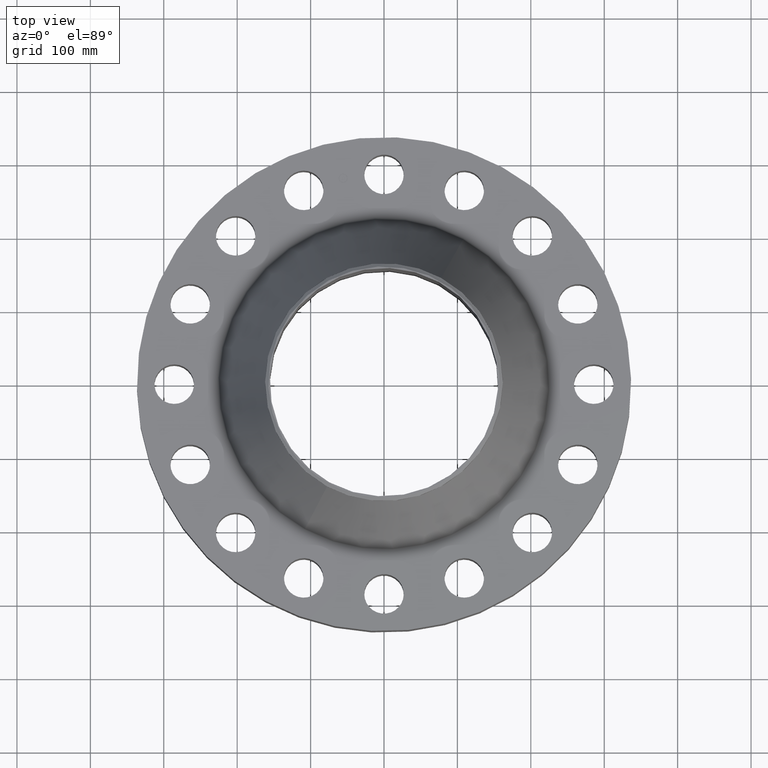
[diagram: clean part render]
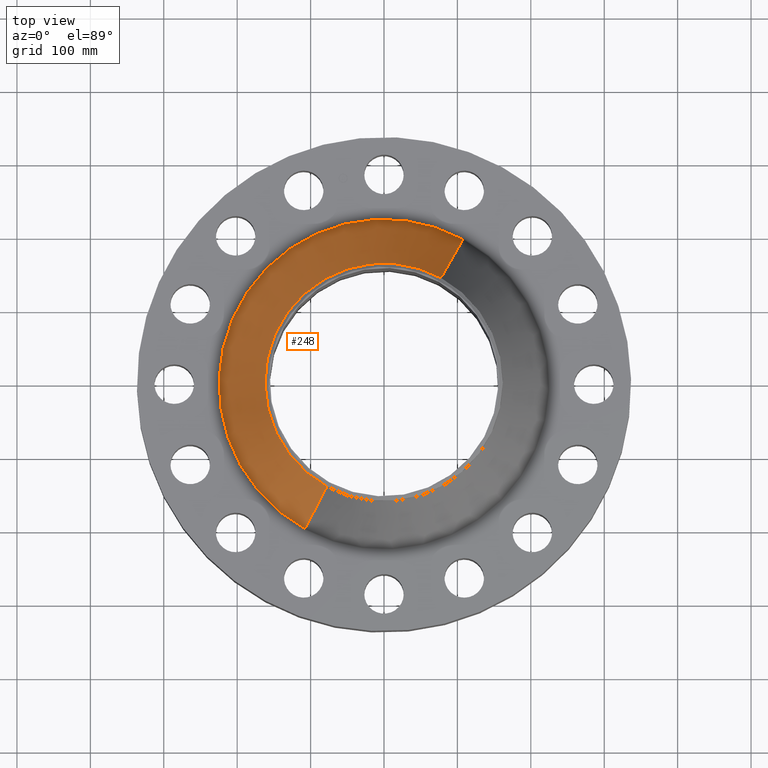
[diagram: same view with one face highlighted and labeled with its STEP entity id]
A machine part, top view. The second image highlights one B-rep face of the part: STEP entity #248.
In plain terms, the highlighted conical surface has half-angle 23.061 deg.
Its self-contained STEP definition (entity closure, byte-faithful):
#196=AXIS2_PLACEMENT_3D('Circle Axis2P3D',#194,#195,$) ;
#209=AXIS2_PLACEMENT_3D('Cone Axis2P3D',#206,#207,#208) ;
#239=AXIS2_PLACEMENT_3D('Circle Axis2P3D',#237,#238,$) ;
#167=CARTESIAN_POINT('Vertex',(4.24000309391,7.76127360343,4.95299554624)) ;
#174=CARTESIAN_POINT('Vertex',(-4.24000309391,-7.76127360343,4.95299554624)) ;
#194=CARTESIAN_POINT('Axis2P3D Location',(0.,0.,4.95299554624)) ;
#206=CARTESIAN_POINT('Axis2P3D Location',(0.,0.,10.7523672285)) ;
#211=CARTESIAN_POINT('Line Origine',(3.64817045126,6.67793121775,7.85268138736)) ;
#215=CARTESIAN_POINT('Vertex',(3.05633780861,5.59458883207,10.7523672285)) ;
#222=CARTESIAN_POINT('Vertex',(-3.05633780861,-5.59458883207,10.7523672285)) ;
#225=CARTESIAN_POINT('Line Origine',(-3.64817045126,-6.67793121775,7.85268138736)) ;
#237=CARTESIAN_POINT('Axis2P3D Location',(0.,0.,10.7523672285)) ;
#195=DIRECTION('Axis2P3D Direction',(0.,0.,-0.0393700787402)) ;
#207=DIRECTION('Axis2P3D Direction',(0.,0.,-0.0393700787402)) ;
#208=DIRECTION('Axis2P3D XDirection',(-0.0188750212049,-0.0345504945626,0.)) ;
#212=DIRECTION('Vector Direction',(0.0073934171826,0.0135335593742,-0.0362240700783)) ;
#226=DIRECTION('Vector Direction',(-0.0073934171826,-0.0135335593742,-0.0362240700783)) ;
#238=DIRECTION('Axis2P3D Direction',(0.,0.,-0.0393700787402)) ;
#213=VECTOR('Line Direction',#212,0.0393700787402) ;
#227=VECTOR('Line Direction',#226,0.0393700787402) ;
#243=ORIENTED_EDGE('',*,*,#198,.F.) ;
#244=ORIENTED_EDGE('',*,*,#229,.T.) ;
#245=ORIENTED_EDGE('',*,*,#241,.T.) ;
#246=ORIENTED_EDGE('',*,*,#217,.F.) ;
#248=ADVANCED_FACE('PartBody',(#247),#210,.T.) ;
#197=CIRCLE('generated circle',#196,8.84392413941) ;
#240=CIRCLE('generated circle',#239,6.37500000003) ;
#210=CONICAL_SURFACE('Cone',#209,6.37500000003,0.402482616963) ;
#198=EDGE_CURVE('',#175,#168,#197,.T.) ;
#217=EDGE_CURVE('',#168,#216,#214,.F.) ;
#229=EDGE_CURVE('',#175,#223,#228,.F.) ;
#241=EDGE_CURVE('',#223,#216,#240,.T.) ;
#242=EDGE_LOOP('',(#243,#244,#245,#246)) ;
#247=FACE_OUTER_BOUND('',#242,.T.) ;
#214=LINE('Line',#211,#213) ;
#228=LINE('Line',#225,#227) ;
#168=VERTEX_POINT('',#167) ;
#175=VERTEX_POINT('',#174) ;
#216=VERTEX_POINT('',#215) ;
#223=VERTEX_POINT('',#222) ;